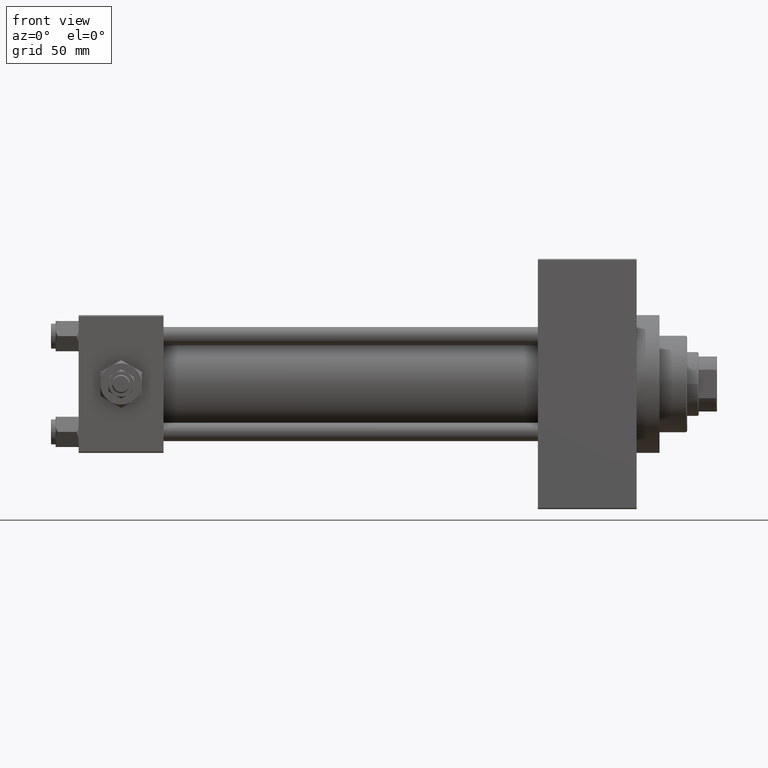
[diagram: clean part render]
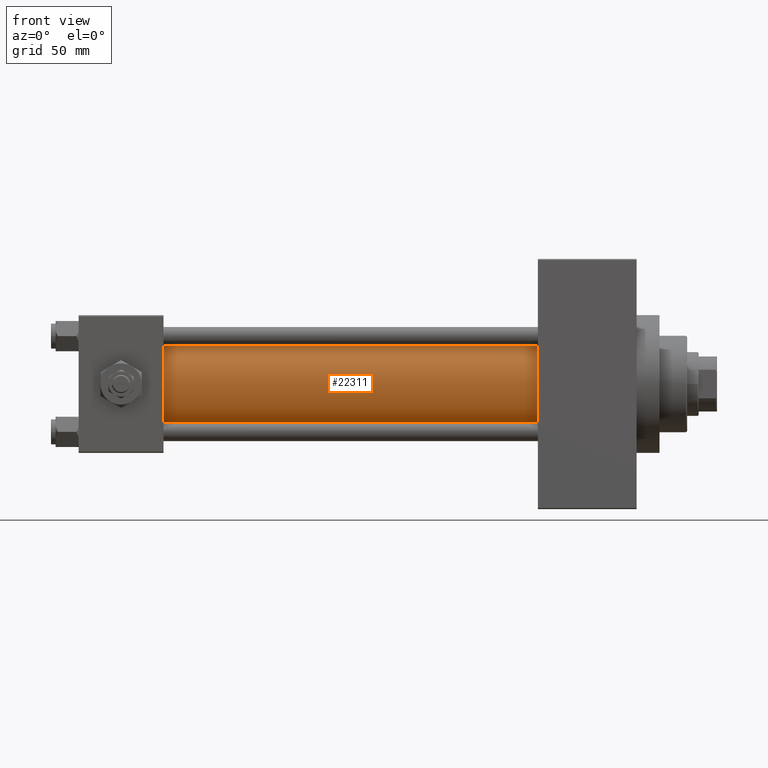
[diagram: same view with one face highlighted and labeled with its STEP entity id]
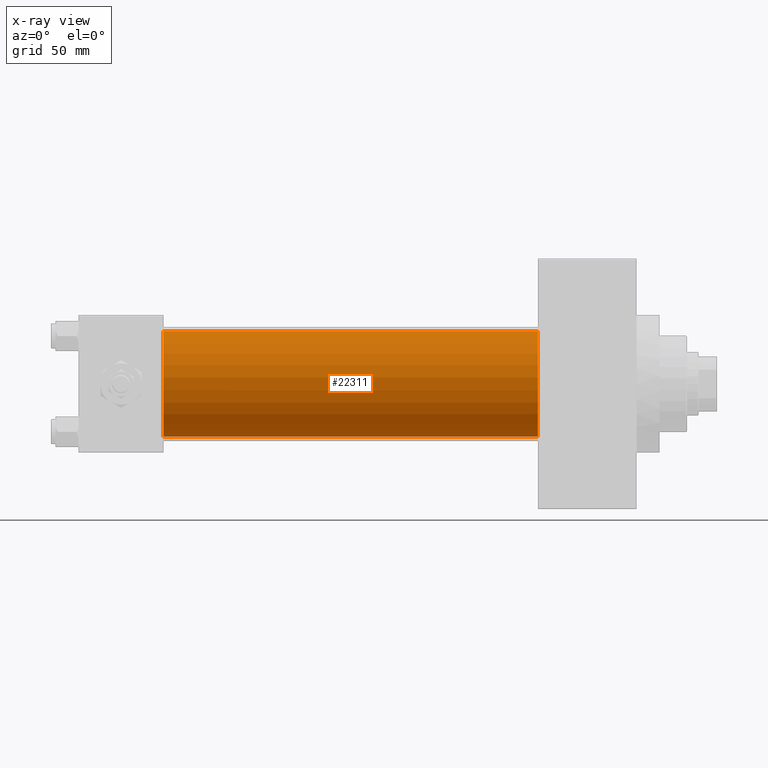
[diagram: x-ray of the same camera — body ghosted, the highlighted face saturated]
A machine part, front view. The second image highlights one B-rep face of the part: STEP entity #22311.
The next image is the same camera in x-ray: the body ghosted, the highlighted face saturated — about 0% of this face is hidden behind the body in this view.
In plain terms, the highlighted cylindrical surface (partial cylindrical patch) has radius 23 mm, axis along (-1, -0, -0).
Its self-contained STEP definition (entity closure, byte-faithful):
#1560 = DIRECTION ( 'NONE',  ( 0.000000000000000000, 0.000000000000000000, 1.000000000000000000 ) ) ;
#2434 = DIRECTION ( 'NONE',  ( 1.000000000000000000, -0.000000000000000000, 0.000000000000000000 ) ) ;
#2802 = VERTEX_POINT ( 'NONE', #44453 ) ;
#2878 = ORIENTED_EDGE ( 'NONE', *, *, #40946, .F. ) ;
#3554 = CIRCLE ( 'NONE', #12219, 23.00000000000000000 ) ;
#5592 = LINE ( 'NONE', #42564, #20836 ) ;
#5599 = EDGE_LOOP ( 'NONE', ( #2878, #39612, #8731, #41858 ) ) ;
#8724 = VECTOR ( 'NONE', #48494, 1000.000000000000000 ) ;
#8731 = ORIENTED_EDGE ( 'NONE', *, *, #27233, .T. ) ;
#9997 = DIRECTION ( 'NONE',  ( 0.000000000000000000, 0.000000000000000000, -1.000000000000000000 ) ) ;
#12219 = AXIS2_PLACEMENT_3D ( 'NONE', #40594, #2434, #21607 ) ;
#12674 = CARTESIAN_POINT ( 'NONE',  ( 200.0000000000000000, -2.602085213965210642E-15, 23.00000000000000000 ) ) ;
#18673 = LINE ( 'NONE', #33951, #8724 ) ;
#20019 = CYLINDRICAL_SURFACE ( 'NONE', #47233, 23.00000000000000000 ) ;
#20593 = CIRCLE ( 'NONE', #34783, 23.00000000000000000 ) ;
#20836 = VECTOR ( 'NONE', #42807, 1000.000000000000000 ) ;
#21607 = DIRECTION ( 'NONE',  ( 0.000000000000000000, 0.000000000000000000, 1.000000000000000000 ) ) ;
#22038 = CARTESIAN_POINT ( 'NONE',  ( 200.0000000000000000, -2.602085213965210642E-15, 0.000000000000000000 ) ) ;
#22311 = ADVANCED_FACE ( 'NONE', ( #31361 ), #20019, .T. ) ;
#24446 = CARTESIAN_POINT ( 'NONE',  ( 200.0000000000000000, -2.602085213965210642E-15, 0.000000000000000000 ) ) ;
#25119 = CARTESIAN_POINT ( 'NONE',  ( 37.00000000000000711, -2.602085213965210642E-15, 23.00000000000000000 ) ) ;
#27233 = EDGE_CURVE ( 'NONE', #47223, #32731, #18673, .T. ) ;
#30170 = EDGE_CURVE ( 'NONE', #47223, #2802, #20593, .T. ) ;
#31361 = FACE_OUTER_BOUND ( 'NONE', #5599, .T. ) ;
#32711 = CARTESIAN_POINT ( 'NONE',  ( 37.00000000000000711, 2.146024240737016609E-16, -23.00000000000000000 ) ) ;
#32731 = VERTEX_POINT ( 'NONE', #25119 ) ;
#33951 = CARTESIAN_POINT ( 'NONE',  ( 200.0000000000000000, -2.602085213965210642E-15, 23.00000000000000000 ) ) ;
#34553 = VERTEX_POINT ( 'NONE', #32711 ) ;
#34783 = AXIS2_PLACEMENT_3D ( 'NONE', #22038, #47459, #9997 ) ;
#35061 = DIRECTION ( 'NONE',  ( -1.000000000000000000, -0.000000000000000000, -0.000000000000000000 ) ) ;
#39612 = ORIENTED_EDGE ( 'NONE', *, *, #30170, .F. ) ;
#40594 = CARTESIAN_POINT ( 'NONE',  ( 37.00000000000000711, -2.602085213965210642E-15, 0.000000000000000000 ) ) ;
#40946 = EDGE_CURVE ( 'NONE', #2802, #34553, #5592, .T. ) ;
#41858 = ORIENTED_EDGE ( 'NONE', *, *, #45799, .T. ) ;
#42564 = CARTESIAN_POINT ( 'NONE',  ( 200.0000000000000000, 2.146024240737016609E-16, -23.00000000000000000 ) ) ;
#42807 = DIRECTION ( 'NONE',  ( -1.000000000000000000, -0.000000000000000000, -0.000000000000000000 ) ) ;
#44453 = CARTESIAN_POINT ( 'NONE',  ( 200.0000000000000000, 2.146024240737016609E-16, -23.00000000000000000 ) ) ;
#45799 = EDGE_CURVE ( 'NONE', #32731, #34553, #3554, .T. ) ;
#47223 = VERTEX_POINT ( 'NONE', #12674 ) ;
#47233 = AXIS2_PLACEMENT_3D ( 'NONE', #24446, #35061, #1560 ) ;
#47459 = DIRECTION ( 'NONE',  ( 1.000000000000000000, 0.000000000000000000, 0.000000000000000000 ) ) ;
#48494 = DIRECTION ( 'NONE',  ( -1.000000000000000000, -0.000000000000000000, -0.000000000000000000 ) ) ;